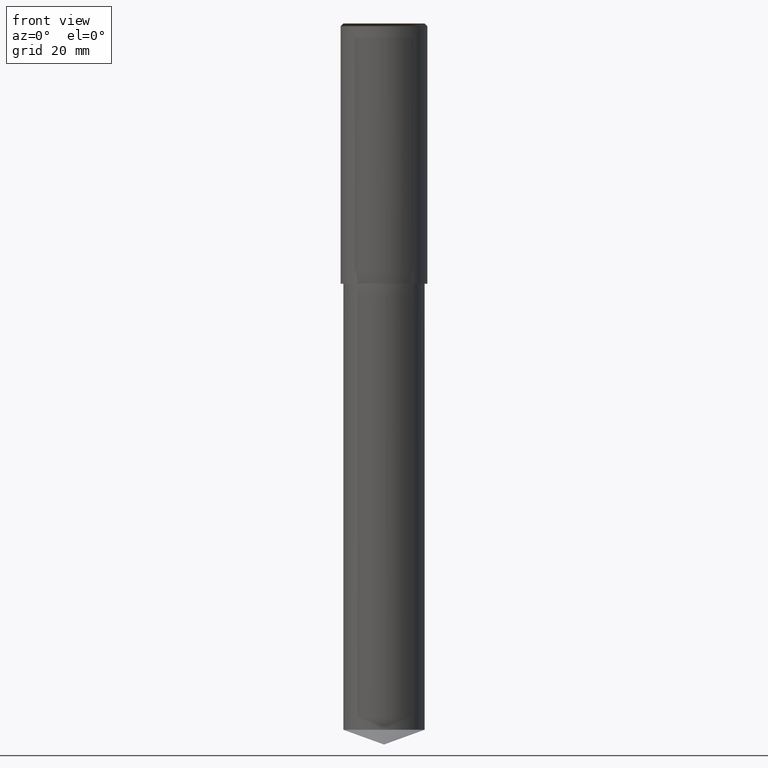
[diagram: clean part render]
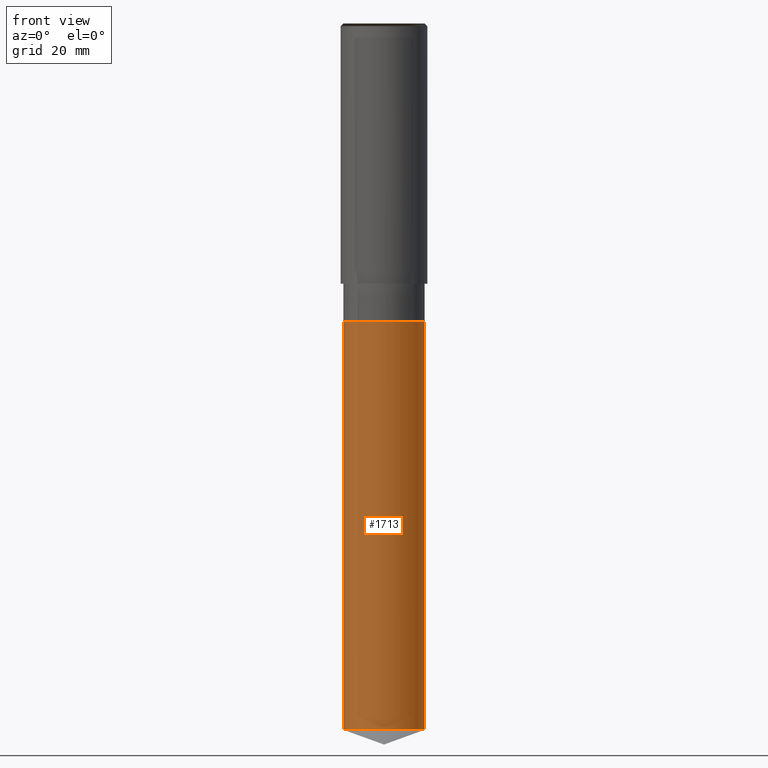
[diagram: same view with one face highlighted and labeled with its STEP entity id]
A machine part, front view. The second image highlights one B-rep face of the part: STEP entity #1713.
In plain terms, the highlighted face is a freeform B-spline surface patch.
Its self-contained STEP definition (entity closure, byte-faithful):
#1563=CARTESIAN_POINT('',(7.5,0.0,-82.270223243003));
#1567=CARTESIAN_POINT('',(-7.5,0.0,-82.270223243003));
#1568=CARTESIAN_POINT('',(7.5,0.0,-7.0));
#1572=CARTESIAN_POINT('',(-7.5,0.0,-7.0));
#1574=CARTESIAN_POINT('',(-7.5,-7.5,-82.270223243003));
#1575=CARTESIAN_POINT('',(0.0,-7.5,-82.270223243003));
#1576=CARTESIAN_POINT('',(7.5,-7.5,-82.270223243003));
#1577=CARTESIAN_POINT('',(-7.5,-7.5,-7.0));
#1578=CARTESIAN_POINT('',(0.0,-7.5,-7.0));
#1579=CARTESIAN_POINT('',(7.5,-7.5,-7.0));
#1694=(
BOUNDED_SURFACE()
B_SPLINE_SURFACE(1,2,(
(#1567,#1574,#1575,#1576,#1563),
(#1572,#1577,#1578,#1579,#1568)
), .UNSPECIFIED.,.F.,.F.,.F.)
B_SPLINE_SURFACE_WITH_KNOTS((2,2),(3,2,3),(
0.0,1.0),(
0.0,0.5,1.0), .UNSPECIFIED.)
GEOMETRIC_REPRESENTATION_ITEM()
RATIONAL_B_SPLINE_SURFACE(((1.0,0.707106781187,1.0,0.707106781187,1.0),
(1.0,0.707106781187,1.0,0.707106781187,1.0)
))
REPRESENTATION_ITEM('')
SURFACE()
);
#1695=(
BOUNDED_CURVE()
B_SPLINE_CURVE(2,(#1563,#1576,#1575,#1574,#1567),.UNSPECIFIED.,.F.,.F.)
B_SPLINE_CURVE_WITH_KNOTS((3,2,3),
(0.0,0.5,1.0),.UNSPECIFIED.)
CURVE()
GEOMETRIC_REPRESENTATION_ITEM()
RATIONAL_B_SPLINE_CURVE((1.0,0.707106781187,1.0,0.707106781187,1.0))
REPRESENTATION_ITEM('')
);
#1696=(
BOUNDED_CURVE()
B_SPLINE_CURVE(1,(#1567,#1572),.UNSPECIFIED.,.F.,.F.)
B_SPLINE_CURVE_WITH_KNOTS((2,2),
(0.0,1.0),.UNSPECIFIED.)
CURVE()
GEOMETRIC_REPRESENTATION_ITEM()
RATIONAL_B_SPLINE_CURVE((1.0,1.0))
REPRESENTATION_ITEM('')
);
#1697=(
BOUNDED_CURVE()
B_SPLINE_CURVE(2,(#1572,#1577,#1578,#1579,#1568),.UNSPECIFIED.,.F.,.F.)
B_SPLINE_CURVE_WITH_KNOTS((3,2,3),
(0.0,0.5,1.0),.UNSPECIFIED.)
CURVE()
GEOMETRIC_REPRESENTATION_ITEM()
RATIONAL_B_SPLINE_CURVE((1.0,0.707106781187,1.0,0.707106781187,1.0))
REPRESENTATION_ITEM('')
);
#1698=(
BOUNDED_CURVE()
B_SPLINE_CURVE(1,(#1568,#1563),.UNSPECIFIED.,.F.,.F.)
B_SPLINE_CURVE_WITH_KNOTS((2,2),
(0.0,1.0),.UNSPECIFIED.)
CURVE()
GEOMETRIC_REPRESENTATION_ITEM()
RATIONAL_B_SPLINE_CURVE((1.0,1.0))
REPRESENTATION_ITEM('')
);
#1699=VERTEX_POINT('',#1563);
#1700=VERTEX_POINT('',#1567);
#1701=VERTEX_POINT('',#1568);
#1702=VERTEX_POINT('',#1572);
#1703=EDGE_CURVE('',#1699,#1700,#1695,.T.);
#1704=EDGE_CURVE('',#1700,#1702,#1696,.T.);
#1705=EDGE_CURVE('',#1702,#1701,#1697,.T.);
#1706=EDGE_CURVE('',#1701,#1699,#1698,.T.);
#1707=ORIENTED_EDGE('',*,*,#1703,.T.);
#1708=ORIENTED_EDGE('',*,*,#1704,.T.);
#1709=ORIENTED_EDGE('',*,*,#1705,.T.);
#1710=ORIENTED_EDGE('',*,*,#1706,.T.);
#1711=EDGE_LOOP('',(#1707,#1708,#1709,#1710));
#1712=FACE_OUTER_BOUND('',#1711,.T.);
#1713=ADVANCED_FACE('',(#1712),#1694,.T.);